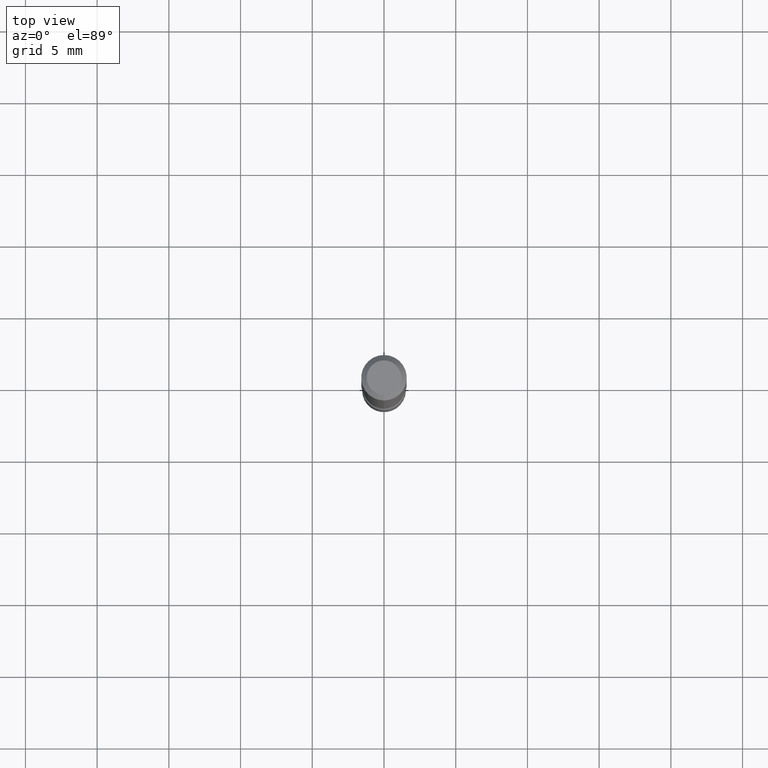
[diagram: clean part render]
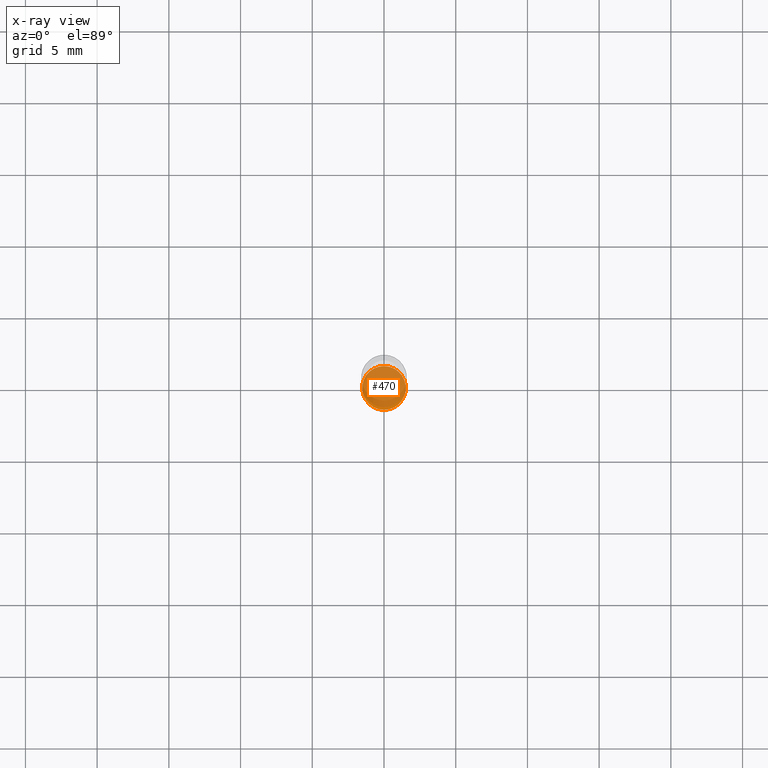
[diagram: x-ray — body ghosted, one internal face saturated and labeled with its STEP entity id]
A machine part, top view, then the same camera in x-ray: the body is ghosted and one INTERNAL B-rep face — a face not visible from any outside direction — is saturated and labeled: STEP entity #470.
In plain terms, the highlighted planar face has unit normal (-0, 0, 1).
Its self-contained STEP definition (entity closure, byte-faithful):
#33 = PLANE ( 'NONE',  #118 ) ;
#37 = CARTESIAN_POINT ( 'NONE',  ( 4.189777606612160768E-16, 0.05999999999999427319, -1.640000000000000346 ) ) ;
#60 = EDGE_LOOP ( 'NONE', ( #382, #191 ) ) ;
#81 = AXIS2_PLACEMENT_3D ( 'NONE', #467, #103, #139 ) ;
#93 = EDGE_CURVE ( 'NONE', #346, #140, #362, .T. ) ;
#103 = DIRECTION ( 'NONE',  ( -2.445460846528019435E-29, 3.491492737525173105E-15, 1.000000000000000000 ) ) ;
#116 = FACE_OUTER_BOUND ( 'NONE', #60, .T. ) ;
#118 = AXIS2_PLACEMENT_3D ( 'NONE', #37, #287, #195 ) ;
#139 = DIRECTION ( 'NONE',  ( -6.982962677686265922E-15, -1.000000000000000000, 4.553079989440439092E-15 ) ) ;
#140 = VERTEX_POINT ( 'NONE', #145 ) ;
#145 = CARTESIAN_POINT ( 'NONE',  ( 4.263256414561002290E-16, 0.05999999999999428707, -1.640000000000000346 ) ) ;
#170 = DIRECTION ( 'NONE',  ( -6.982962677686265922E-15, -1.000000000000000000, 4.553079989440439092E-15 ) ) ;
#191 = ORIENTED_EDGE ( 'NONE', *, *, #310, .F. ) ;
#195 = DIRECTION ( 'NONE',  ( -6.982962677686265922E-15, -1.000000000000000000, 3.491492737525173105E-15 ) ) ;
#199 = CIRCLE ( 'NONE', #234, 0.05999999999999999778 ) ;
#234 = AXIS2_PLACEMENT_3D ( 'NONE', #377, #299, #170 ) ;
#287 = DIRECTION ( 'NONE',  ( -2.445460846528018874E-29, 3.491492737525173105E-15, 1.000000000000000000 ) ) ;
#299 = DIRECTION ( 'NONE',  ( -2.445460846528019435E-29, 3.491492737525173105E-15, 1.000000000000000000 ) ) ;
#310 = EDGE_CURVE ( 'NONE', #140, #346, #199, .T. ) ;
#346 = VERTEX_POINT ( 'NONE', #450 ) ;
#362 = CIRCLE ( 'NONE', #81, 0.05999999999999999778 ) ;
#377 = CARTESIAN_POINT ( 'NONE',  ( 4.010555788305951671E-29, -5.726048089541283278E-15, -1.639999999999999902 ) ) ;
#382 = ORIENTED_EDGE ( 'NONE', *, *, #93, .F. ) ;
#450 = CARTESIAN_POINT ( 'NONE',  ( -4.189777606611359088E-16, -0.06000000000000574318, -1.639999999999999680 ) ) ;
#467 = CARTESIAN_POINT ( 'NONE',  ( 4.010555788305951671E-29, -5.726048089541283278E-15, -1.639999999999999902 ) ) ;
#470 = ADVANCED_FACE ( 'NONE', ( #116 ), #33, .F. ) ;